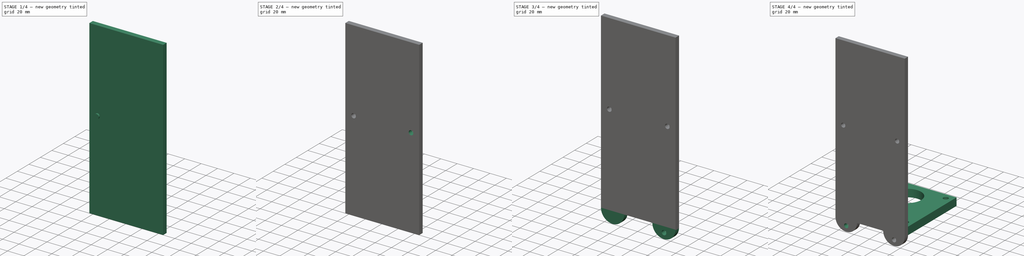
[diagram: build sequence overview — one tinted view per stage of 4, left to right]
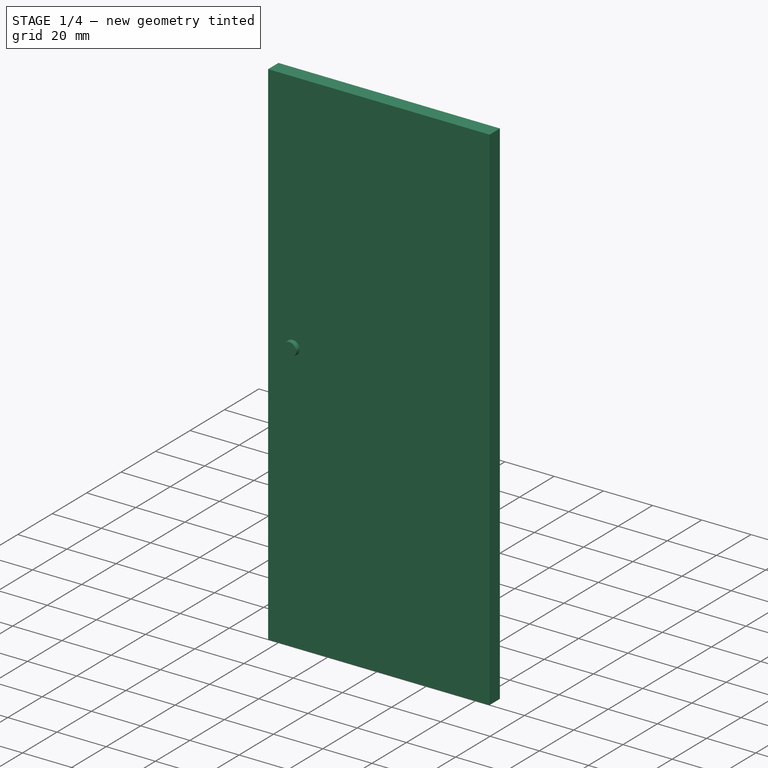
[diagram: stage 1 of 4 — iso view after this stage's code; geometry added in this stage tinted green]
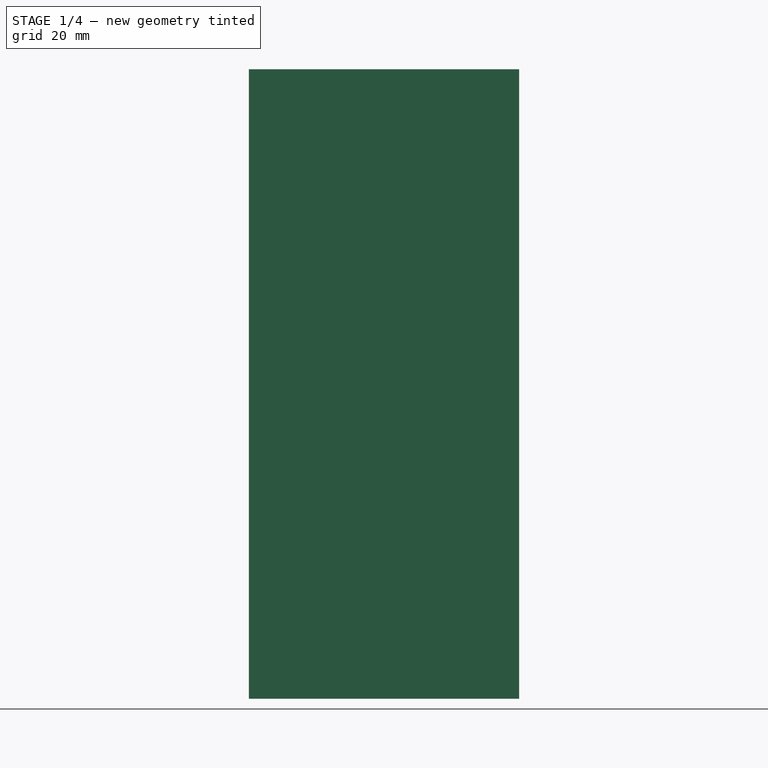
[diagram: stage 1 of 4 — front view after this stage's code; geometry added in this stage tinted green]
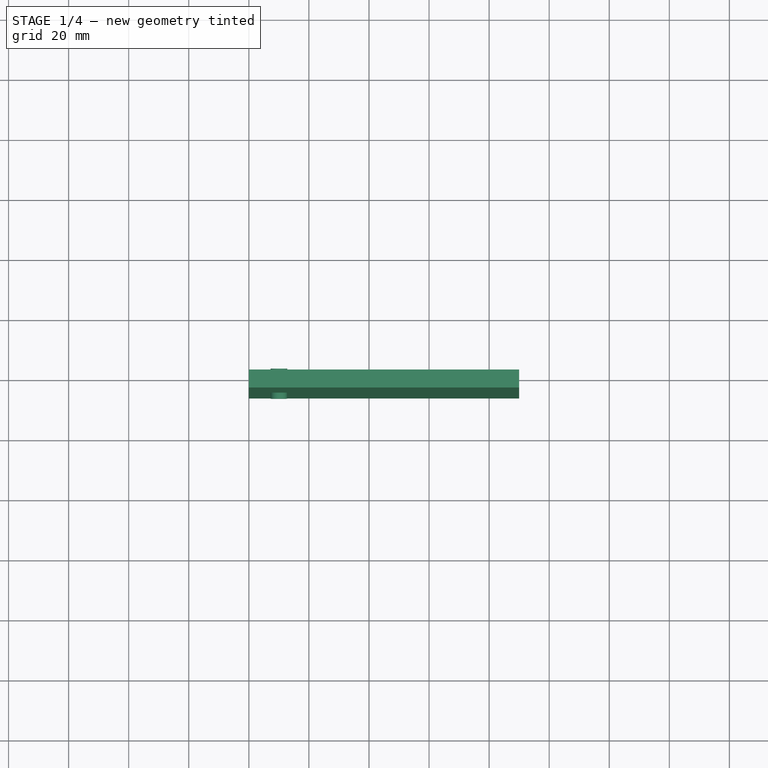
[diagram: stage 1 of 4 — top view after this stage's code; geometry added in this stage tinted green]
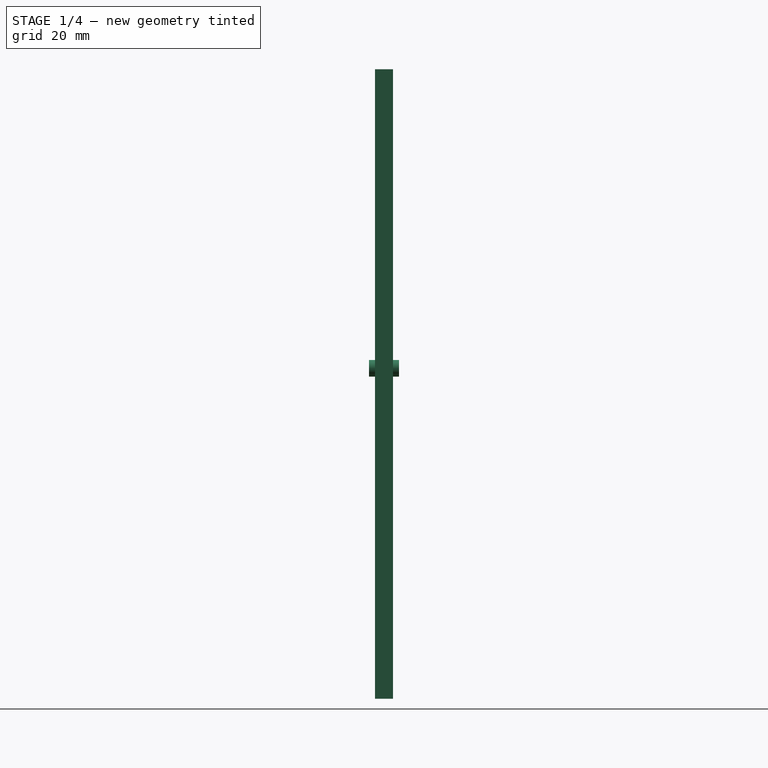
[diagram: stage 1 of 4 — right view after this stage's code; geometry added in this stage tinted green]
FCSTD DOCUMENT  (FreeCAD 0.20R29603 (Git))
Label: MotorMount
License: All rights reserved
LicenseURL: https://en.wikipedia.org/wiki/All_rights_reserved
objects: Part::Cylinder×4, Part::Cut×4, Sketcher::SketchObject×3, Part::Extrusion×3, Part::MultiFuse×1
note: 15 computed .brp shape members not serialized (recipe doc carries the construction recipe); baked Part::Feature solids carry a one-line shape summary decoded from their .brp

FEATURE [Sketcher::SketchObject] Sketch
  FullyConstrained = true
  sketch-geometry (20):
    g0: LineSegment StartX=0 StartY=0 StartZ=0 EndX=0 EndY=90 EndZ=0
    g1: LineSegment StartX=0 StartY=0 StartZ=0 EndX=90 EndY=0 EndZ=0
    g2: LineSegment StartX=0 StartY=90 StartZ=0 EndX=90 EndY=90 EndZ=0
    g3: LineSegment StartX=90 StartY=90 StartZ=0 EndX=90 EndY=0 EndZ=0
    g4: GeomPoint X=0 Y=45 Z=0
    g5: GeomPoint X=90 Y=45 Z=0
    g6: GeomPoint X=45 Y=90 Z=0
    g7: GeomPoint X=45 Y=0 Z=0
    g8: GeomPoint X=45 Y=45 Z=0
    g9: LineSegment StartX=8.23045 StartY=81.7696 StartZ=0 EndX=81.7696 EndY=8.23045 EndZ=0
    g10: LineSegment StartX=8.23045 StartY=8.23045 StartZ=0 EndX=81.7696 EndY=81.7696 EndZ=0
    g11: Circle CenterX=8.23045 CenterY=81.7696 CenterZ=0 NormalX=0 NormalY=0 NormalZ=1 AngleXU=0 Radius=3.25
    g12: Circle CenterX=81.7696 CenterY=81.7696 CenterZ=0 NormalX=0 NormalY=0 NormalZ=1 AngleXU=0 Radius=3.25
    g13: Circle CenterX=81.7696 CenterY=8.23045 CenterZ=0 NormalX=0 NormalY=0 NormalZ=1 AngleXU=0 Radius=3.25
    g14: Circle CenterX=8.23045 CenterY=8.23045 CenterZ=0 NormalX=0 NormalY=0 NormalZ=1 AngleXU=0 Radius=3.25
    g15: GeomPoint X=45 Y=63 Z=0
    g16: Circle CenterX=45 CenterY=63 CenterZ=0 NormalX=0 NormalY=0 NormalZ=1 AngleXU=0 Radius=18
    g17: LineSegment StartX=90 StartY=0 StartZ=0 EndX=90 EndY=-6 EndZ=0
    g18: LineSegment StartX=0 StartY=0 StartZ=0 EndX=6e-15 EndY=-6 EndZ=0
    g19: LineSegment StartX=6e-15 StartY=-6 StartZ=0 EndX=90 EndY=-6 EndZ=0
  constraints (49):
    c: Coincident(g0,g-1)
    c: PointOnObject(g0,g-2)
    c: Coincident(g1,g0)
    c: PointOnObject(g1,g-1)
    c: Distance(g0) = 90
    c: Distance(g1) = 90
    c: Coincident(g2,g0)
    c: Coincident(g3,g2)
    c: Coincident(g3,g1)
    c: Distance(g3) = 90
    c: Distance(g2) = 90
    c: PointOnObject(g4,g0)
    c: PointOnObject(g5,g3)
    c: PointOnObject(g6,g2)
    c: PointOnObject(g7,g1)
    c: Distance(g7,g0) = 45
    c: Distance(g4,g0) = 45
    c: Distance(g0,g6) = 45
    c: Distance(g5,g-1) = 45
    c: Distance(g8,g1) = 45
    c: Distance(g8,g0) = 45
    c: Distance(g9) = 104
    c: Distance(g10) = 104
    c: Perpendicular(g10,g9)
    c: Angle(g-1,g10) = 0.785398
    c: Distance(g8,g10) = 52
    c: Distance(g9,g8) = 52
    c: PointOnObject(g8,g10)
    c: PointOnObject(g8,g9)
    c: Coincident(g11,g9)
    c: Coincident(g12,g10)
    c: Coincident(g13,g9)
    c: Coincident(g14,g10)
    c: Diameter(g14) = 6.5
    c: Diameter(g13) = 6.5
    c: Diameter(g12) = 6.5
    c: Diameter(g11) = 6.5
    c: DistanceX(g8,g15) = 0
    c: DistanceY(g8,g15) = 18
    c: Coincident(g16,g15)
    c: PointOnObject(g8,g16)
    c: Coincident(g17,g1)
    c: Coincident(g18,g0)
    c: Coincident(g19,g18)
    c: Coincident(g19,g17)
    c: Horizontal(g19)
    c: Distance(g19) = 90
    c: Vertical(g17)
    c: Distance(g17) = 6
FEATURE [Part::Extrusion] Extrude
  Base = -> Sketch
  Dir = (0,0,1)
  DirMode = 2
  FaceMakerClass = Part::FaceMakerBullseye
  LengthFwd = 10
  LengthRev = 0
  Solid = true
  Symmetric = false
FEATURE [Sketcher::SketchObject] Sketch001
  ExternalGeometry = -> [Extrude]
  FullyConstrained = true
  MapMode = 2
  Support = -> [Sketch]
  sketch-geometry (4):
    g0: LineSegment StartX=0 StartY=-6 StartZ=0 EndX=90 EndY=-6 EndZ=0
    g1: LineSegment StartX=90 StartY=-6 StartZ=0 EndX=90 EndY=0 EndZ=0
    g2: LineSegment StartX=90 StartY=0 StartZ=0 EndX=0 EndY=0 EndZ=0
    g3: LineSegment StartX=0 StartY=0 StartZ=0 EndX=0 EndY=-6 EndZ=0
  constraints (10):
    c: Coincident(g0,g1)
    c: Coincident(g1,g2)
    c: Coincident(g2,g3)
    c: Coincident(g3,g0)
    c: Horizontal(g0)
    c: Horizontal(g2)
    c: Vertical(g1)
    c: Vertical(g3)
    c: Coincident(g0,g-4)
    c: Coincident(g1,g-5)
FEATURE [Part::Extrusion] Extrude001
  Base = -> Sketch001
  Dir = (0,0,1)
  DirMode = 2
  FaceMakerClass = Part::FaceMakerBullseye
  LengthFwd = 209.55
  LengthRev = 0
  Solid = true
  Symmetric = false
FEATURE [Part::Cylinder] Cylinder002
  Angle = 360
  AttacherType = Attacher::AttachEngine3D
  FirstAngle = 0
  Height = 10
  Placement = pos=(10,2,110) rot=(1,0,0;1.5708rad)
  Radius = 2.78
  SecondAngle = 0
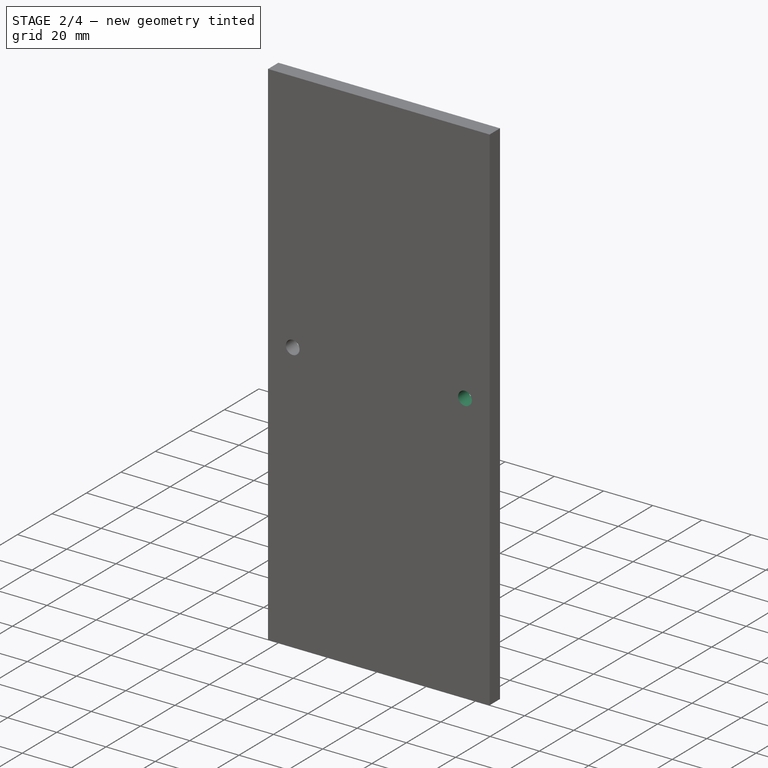
[diagram: stage 2 of 4 — iso view after this stage's code; geometry added in this stage tinted green]
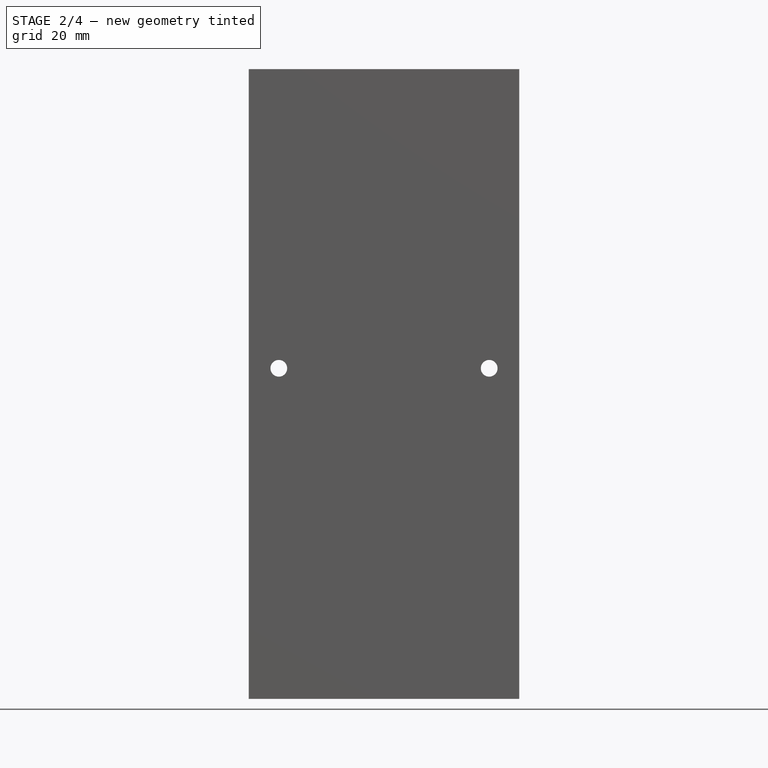
[diagram: stage 2 of 4 — front view after this stage's code; geometry added in this stage tinted green]
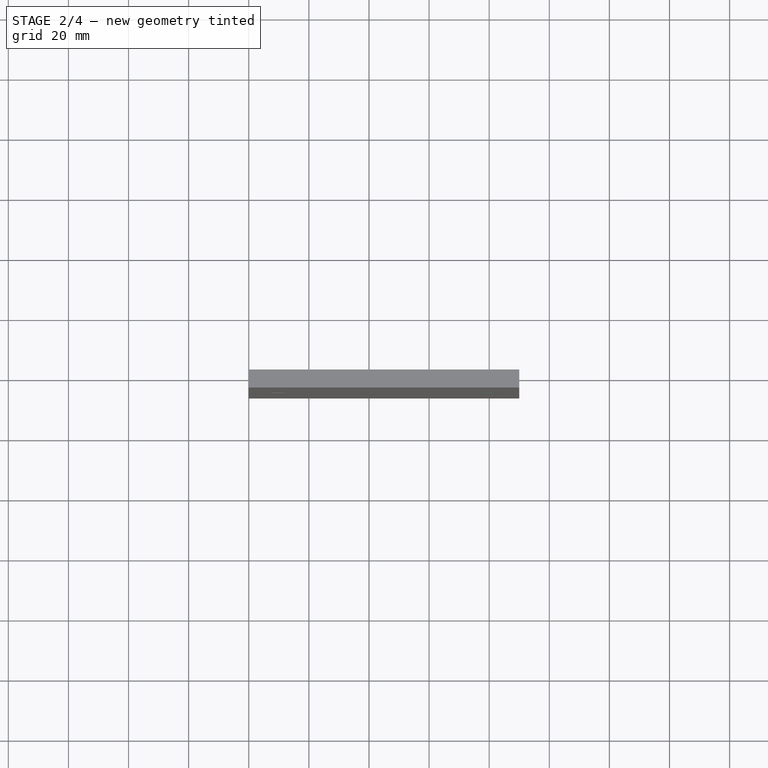
[diagram: stage 2 of 4 — top view after this stage's code; geometry added in this stage tinted green]
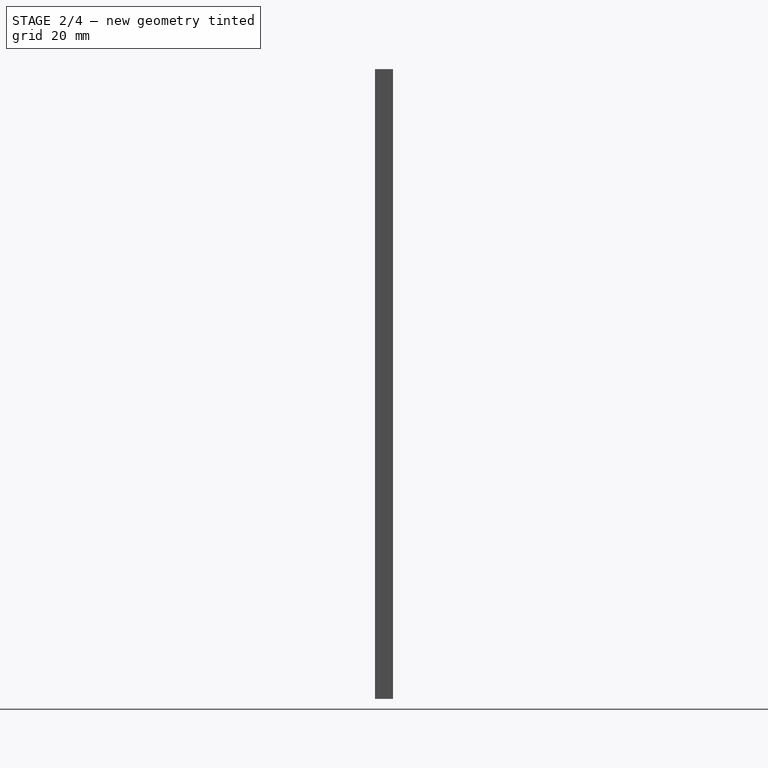
[diagram: stage 2 of 4 — right view after this stage's code; geometry added in this stage tinted green]
FEATURE [Part::Cylinder] Cylinder003
  Angle = 360
  AttacherType = Attacher::AttachEngine3D
  FirstAngle = 0
  Height = 10
  Placement = pos=(80,2,110) rot=(1,0,0;1.5708rad)
  Radius = 2.78
  SecondAngle = 0
FEATURE [Part::Cut] Cut002
  Base = -> Extrude001
  Tool = -> Cylinder002
FEATURE [Part::Cut] Cut003
  Base = -> Cut002
  Tool = -> Cylinder003
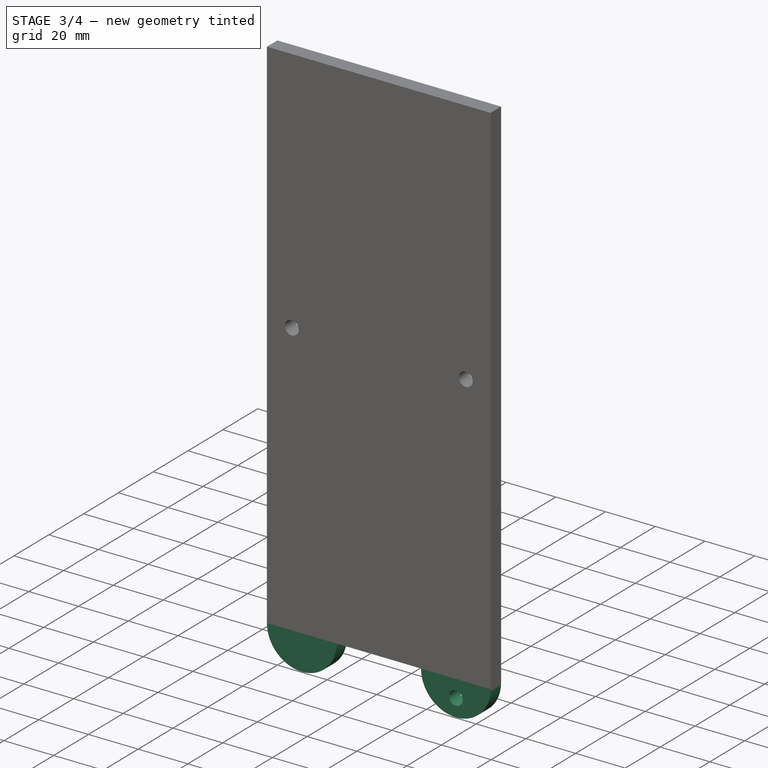
[diagram: stage 3 of 4 — iso view after this stage's code; geometry added in this stage tinted green]
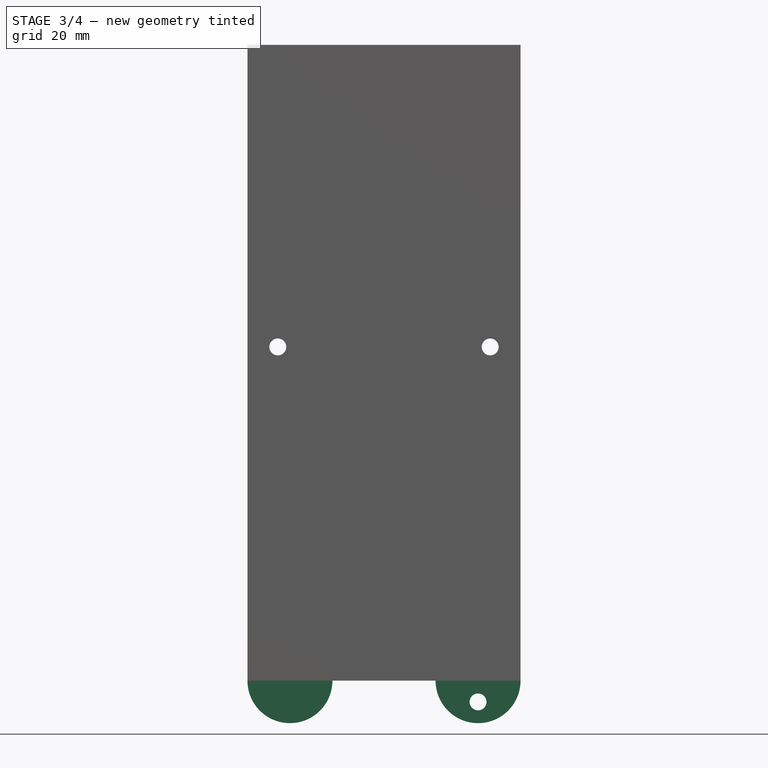
[diagram: stage 3 of 4 — front view after this stage's code; geometry added in this stage tinted green]
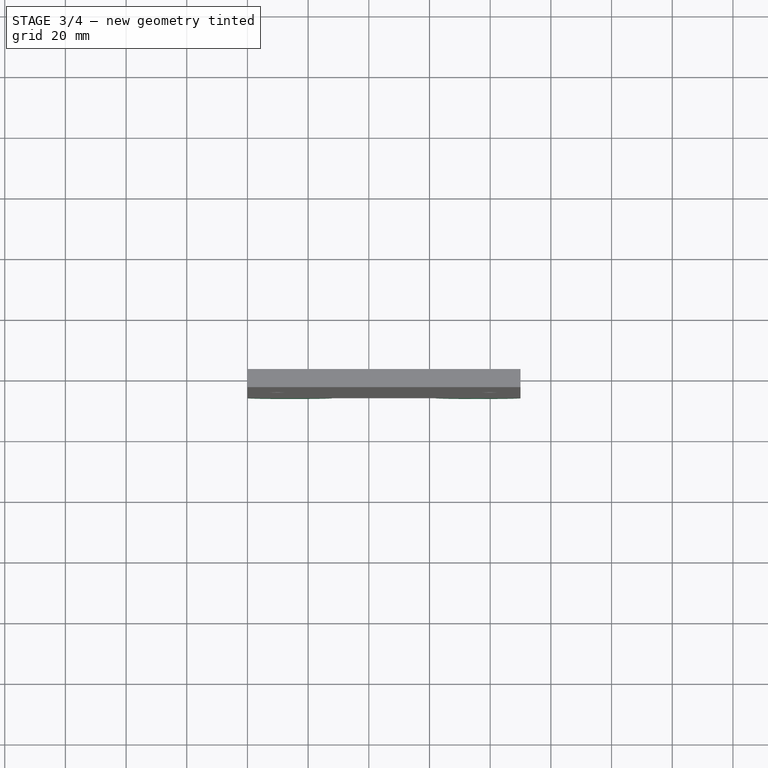
[diagram: stage 3 of 4 — top view after this stage's code; geometry added in this stage tinted green]
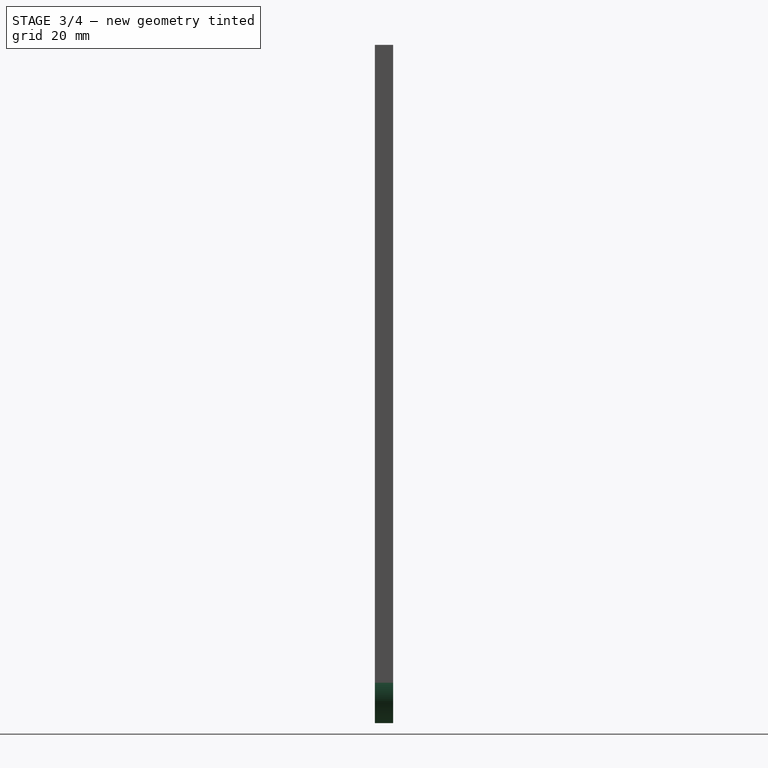
[diagram: stage 3 of 4 — right view after this stage's code; geometry added in this stage tinted green]
FEATURE [Sketcher::SketchObject] Sketch002
  FullyConstrained = false
  MapMode = 5
  Placement = pos=(0,-6,0) rot=(1,0,0;1.5708rad)
  Support = -> [Extrude001]
  sketch-geometry (7):
    g0: LineSegment StartX=14 StartY=0 StartZ=0 EndX=14 EndY=-7 EndZ=0
    g1: LineSegment StartX=76 StartY=0 StartZ=0 EndX=76 EndY=-7 EndZ=0
    g2: ArcOfCircle CenterX=14 CenterY=0 CenterZ=0 NormalX=0 NormalY=0 NormalZ=1 AngleXU=0 Radius=14 StartAngle=3.14159 EndAngle=6.28319
    g3: GeomPoint X=28 Y=-3.4e-15 Z=0
    g4: ArcOfCircle CenterX=76 CenterY=0 CenterZ=0 NormalX=0 NormalY=0 NormalZ=1 AngleXU=0 Radius=14 StartAngle=3.14159 EndAngle=6.28319
    g5: LineSegment StartX=0 StartY=-3.4e-15 StartZ=0 EndX=28 EndY=-3.4e-15 EndZ=0
    g6: LineSegment StartX=62 StartY=-3.4e-15 StartZ=0 EndX=90 EndY=-3.4e-15 EndZ=0
  constraints (15):
    c: Vertical(g0)
    c: Vertical(g1)
    c: Distance(g0) = 7
    c: Distance(g1) = 7
    c: Distance(g0,g-1) = 14
    c: Distance(g1,g4) = 14
    c: Coincident(g2,g0)
    c: Coincident(g3,g2)
    c: Coincident(g4,g1)
    c: Coincident(g5,g2)
    c: Coincident(g5,g2)
    c: Horizontal(g5)
    c: Coincident(g6,g4)
    c: Coincident(g6,g4)
    c: Horizontal(g6)
FEATURE [Part::Extrusion] Extrude002
  Base = -> Sketch002
  Dir = (0,-1,2e-16)
  DirMode = 2
  FaceMakerClass = Part::FaceMakerBullseye
  LengthFwd = 6
  LengthRev = 0
  Reversed = true
  Solid = true
  Symmetric = false
FEATURE [Part::Cylinder] Cylinder001
  Angle = 360
  AttacherType = Attacher::AttachEngine3D
  FirstAngle = 0
  Height = 10
  Placement = pos=(76,2,-7) rot=(1,0,0;1.5708rad)
  Radius = 2.78
  SecondAngle = 0
FEATURE [Part::Cut] Cut
  Base = -> Extrude002
  Tool = -> Cylinder001
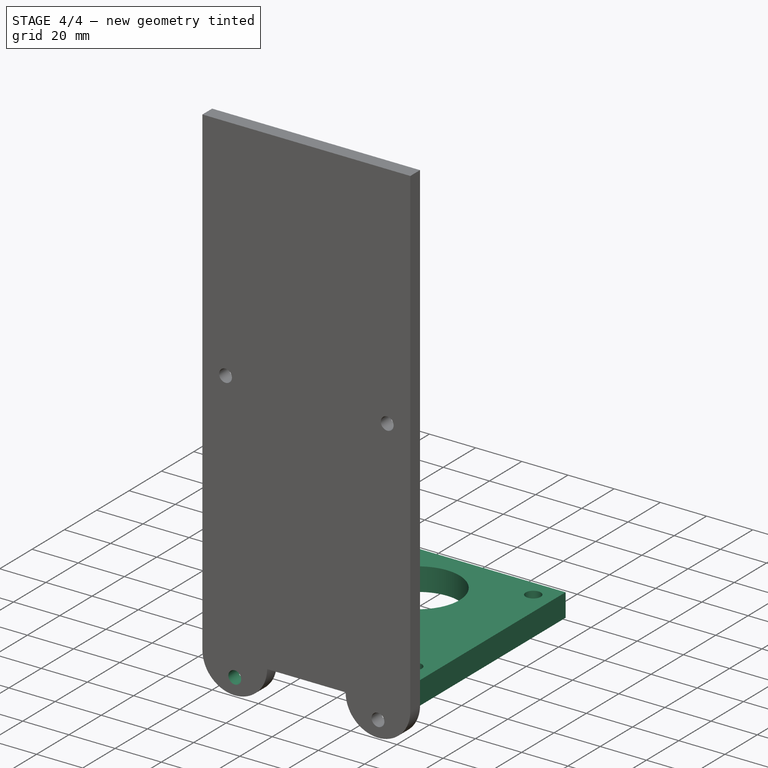
[diagram: stage 4 of 4 — iso view after this stage's code; geometry added in this stage tinted green]
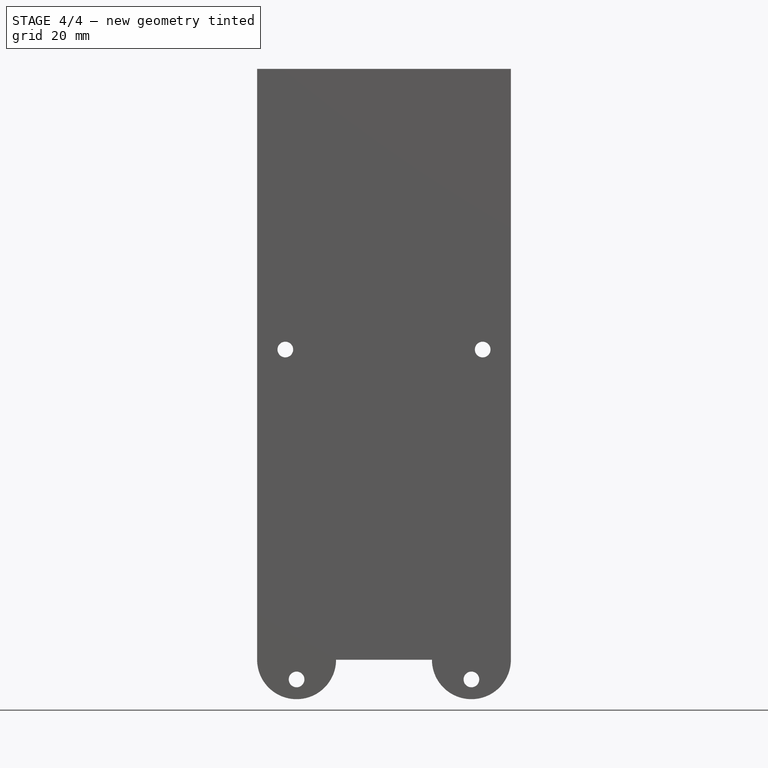
[diagram: stage 4 of 4 — front view after this stage's code; geometry added in this stage tinted green]
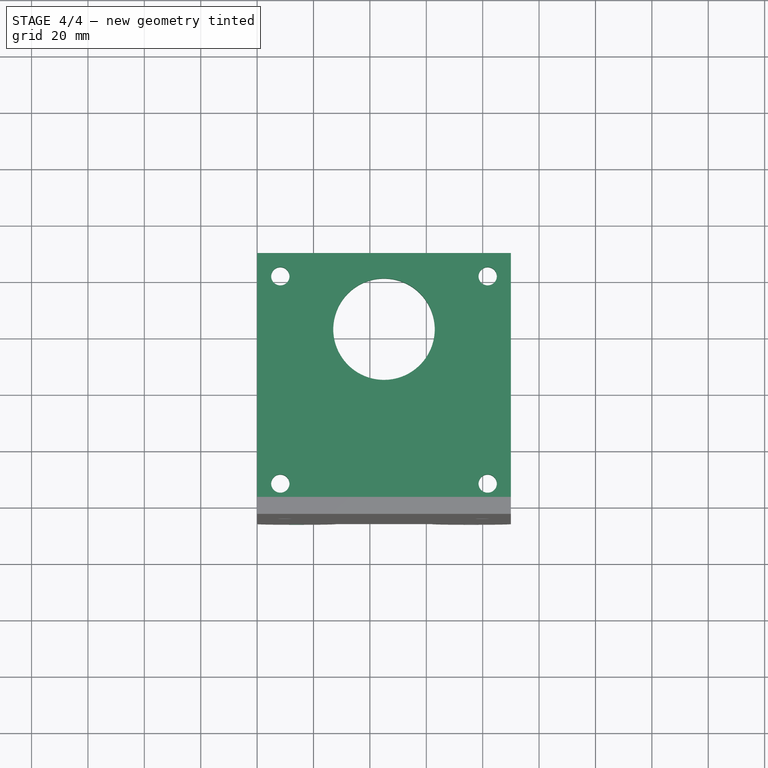
[diagram: stage 4 of 4 — top view after this stage's code; geometry added in this stage tinted green]
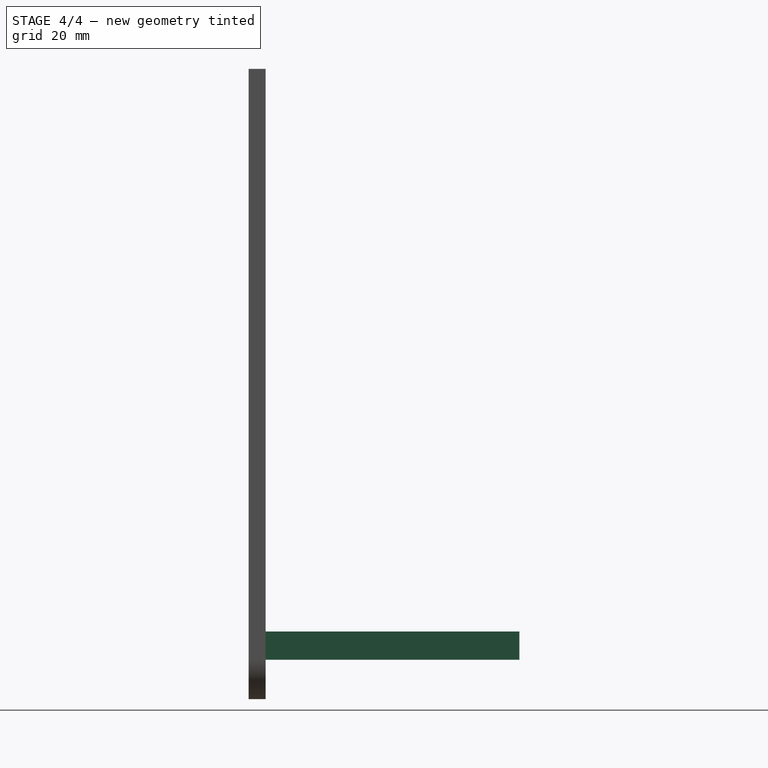
[diagram: stage 4 of 4 — right view after this stage's code; geometry added in this stage tinted green]
FEATURE [Part::Cylinder] Cylinder
  Angle = 360
  AttacherType = Attacher::AttachEngine3D
  FirstAngle = 0
  Height = 10
  Placement = pos=(14,2,-7) rot=(1,0,0;1.5708rad)
  Radius = 2.78
  SecondAngle = 0
FEATURE [Part::Cut] Cut001
  Base = -> Cut
  Tool = -> Cylinder
FEATURE [Part::MultiFuse] Fusion
  Shapes = -> [Extrude,Cut001,Cut003]
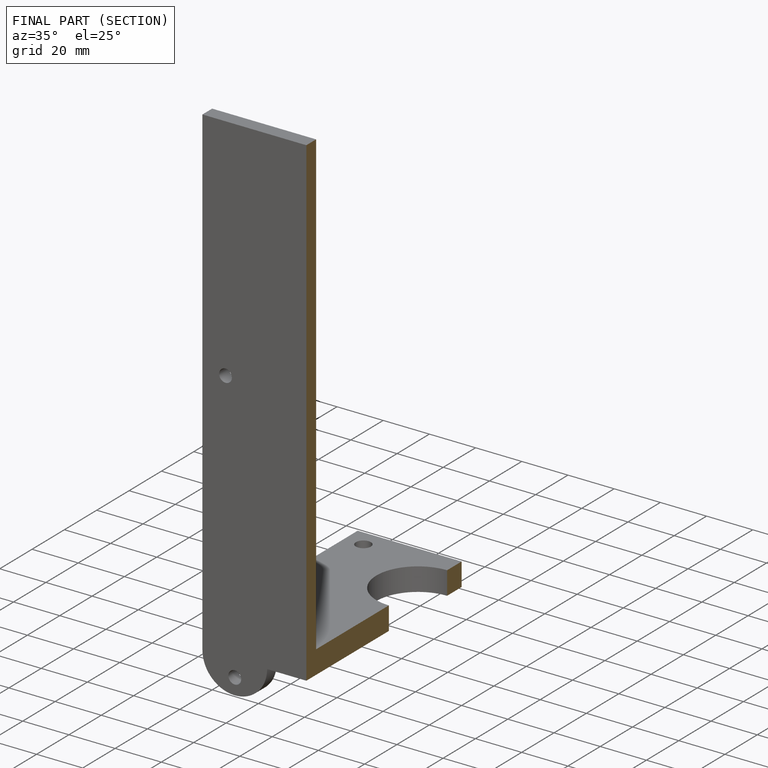
[diagram: finished part — half-section view (interior)]
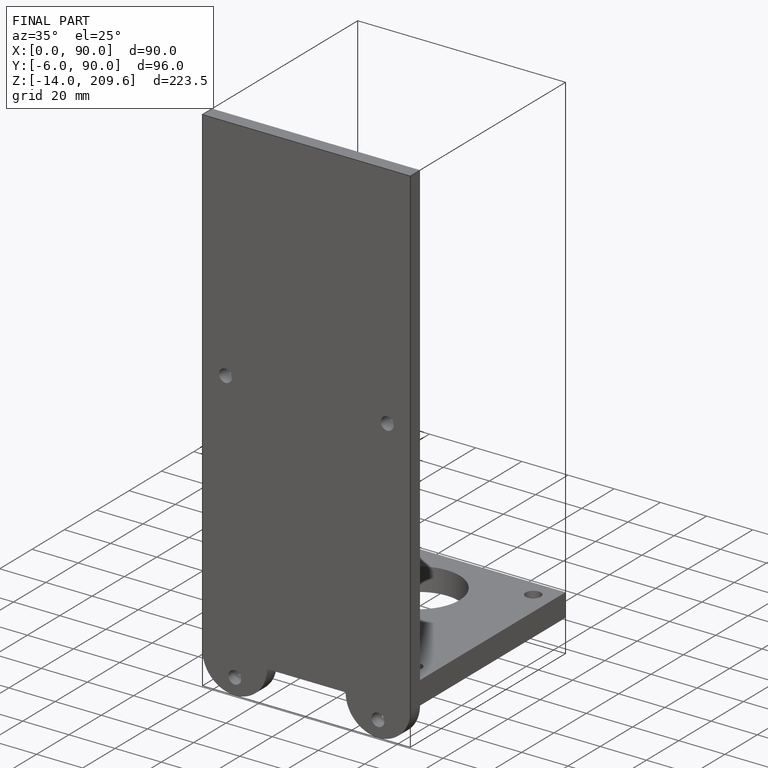
[diagram: finished part — iso view with bounding-box wireframe]
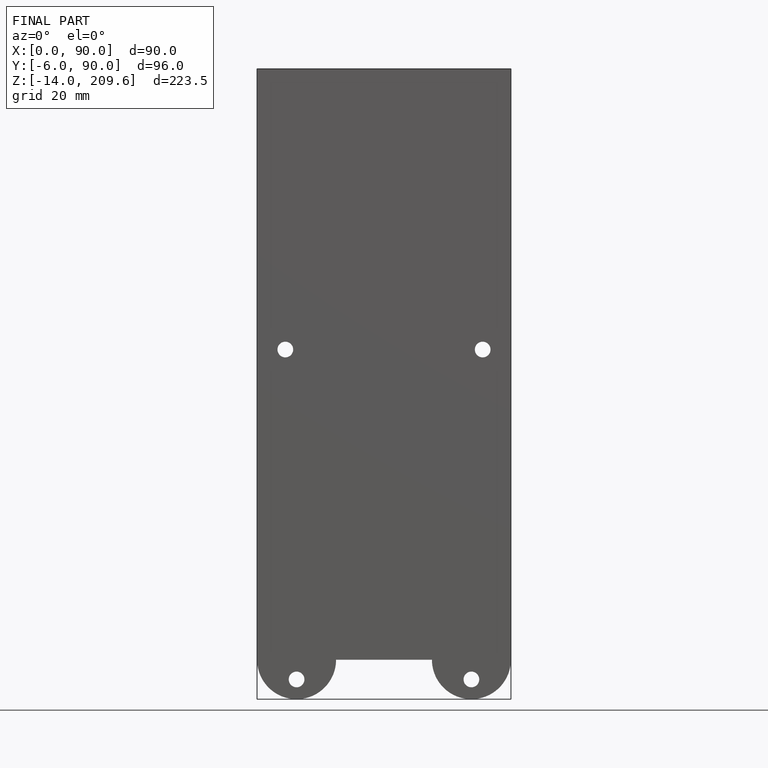
[diagram: finished part — front view with bounding-box wireframe]
